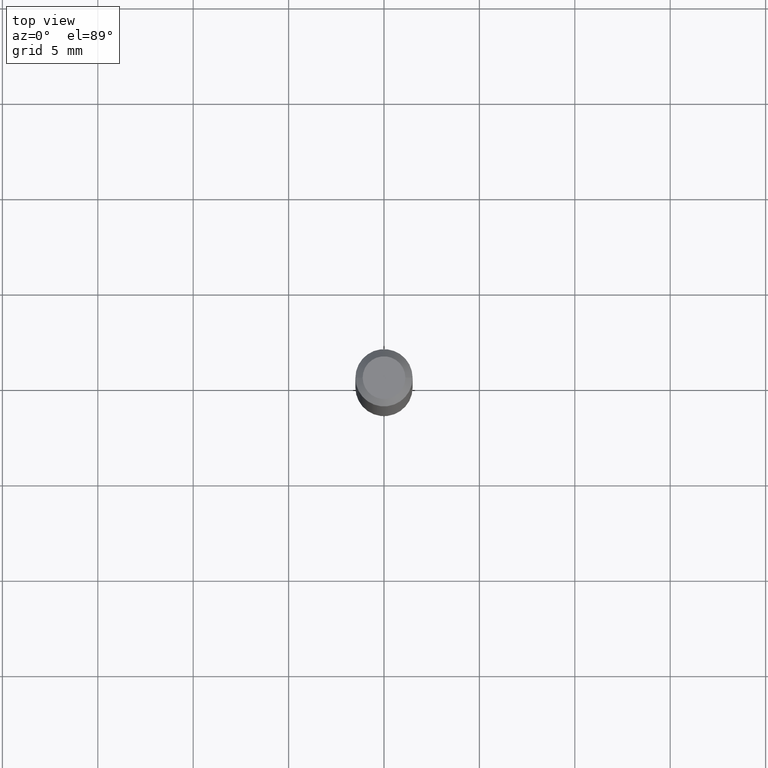
[diagram: clean part render]
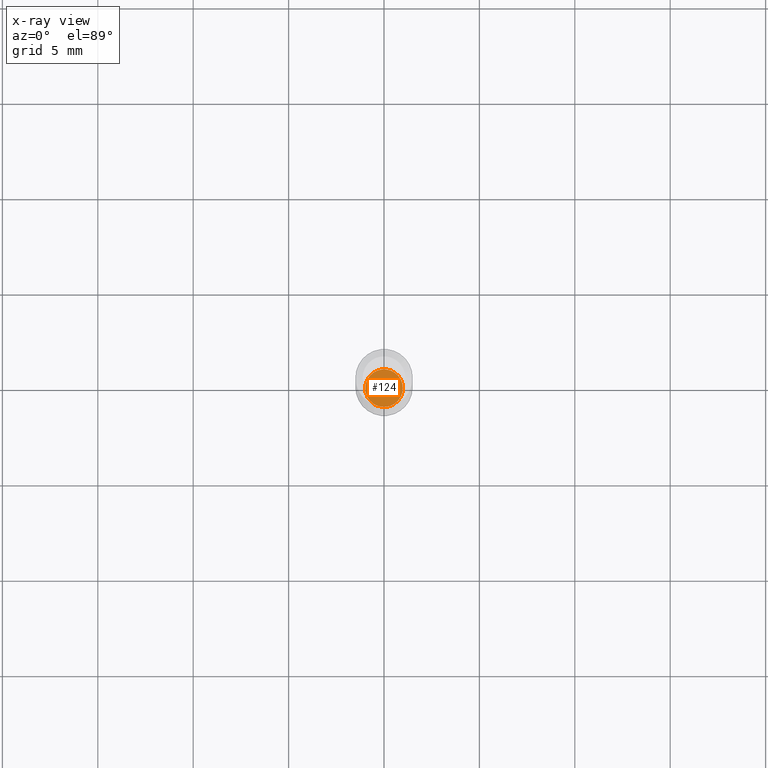
[diagram: x-ray — body ghosted, one internal face saturated and labeled with its STEP entity id]
A machine part, top view, then the same camera in x-ray: the body is ghosted and one INTERNAL B-rep face — a face not visible from any outside direction — is saturated and labeled: STEP entity #124.
In plain terms, the highlighted planar face has unit normal (-0, 0, 1).
Its self-contained STEP definition (entity closure, byte-faithful):
#10 = AXIS2_PLACEMENT_3D ( 'NONE', #242, #410, #137 ) ;
#17 = ORIENTED_EDGE ( 'NONE', *, *, #434, .F. ) ;
#39 = AXIS2_PLACEMENT_3D ( 'NONE', #115, #405, #402 ) ;
#50 = PLANE ( 'NONE',  #10 ) ;
#59 = VERTEX_POINT ( 'NONE', #363 ) ;
#115 = CARTESIAN_POINT ( 'NONE',  ( 3.061726945343791391E-29, -4.371334636231619274E-15, -1.252000000000000224 ) ) ;
#124 = ADVANCED_FACE ( 'NONE', ( #209 ), #50, .F. ) ;
#137 = DIRECTION ( 'NONE',  ( 1.000000000000000000, -6.982962677686265922E-15, 4.876176775795935793E-29 ) ) ;
#164 = CIRCLE ( 'NONE', #461, 0.03885000000000000259 ) ;
#189 = DIRECTION ( 'NONE',  ( 1.000000000000000000, -6.982962677686256455E-15, 0.000000000000000000 ) ) ;
#209 = FACE_OUTER_BOUND ( 'NONE', #414, .T. ) ;
#218 = ORIENTED_EDGE ( 'NONE', *, *, #240, .F. ) ;
#230 = CARTESIAN_POINT ( 'NONE',  ( -0.03885000000000000259, -4.092639556214709577E-15, -1.252000000000000224 ) ) ;
#232 = CIRCLE ( 'NONE', #39, 0.03885000000000000259 ) ;
#240 = EDGE_CURVE ( 'NONE', #59, #423, #164, .T. ) ;
#242 = CARTESIAN_POINT ( 'NONE',  ( 3.061726945343791391E-29, -4.371334636231619274E-15, -1.252000000000000224 ) ) ;
#293 = DIRECTION ( 'NONE',  ( -2.445468806185136597E-29, 3.491481338843145583E-15, 1.000000000000000000 ) ) ;
#363 = CARTESIAN_POINT ( 'NONE',  ( 0.03885000000000000259, -4.642622736259730395E-15, -1.252000000000000224 ) ) ;
#402 = DIRECTION ( 'NONE',  ( 1.000000000000000000, -6.982962677686256455E-15, 0.000000000000000000 ) ) ;
#405 = DIRECTION ( 'NONE',  ( -2.445468806185136597E-29, 3.491481338843145583E-15, 1.000000000000000000 ) ) ;
#410 = DIRECTION ( 'NONE',  ( -2.438088387897960049E-29, 3.491481338843145188E-15, 1.000000000000000000 ) ) ;
#414 = EDGE_LOOP ( 'NONE', ( #218, #17 ) ) ;
#421 = CARTESIAN_POINT ( 'NONE',  ( 3.061726945343791391E-29, -4.371334636231619274E-15, -1.252000000000000224 ) ) ;
#423 = VERTEX_POINT ( 'NONE', #230 ) ;
#434 = EDGE_CURVE ( 'NONE', #423, #59, #232, .T. ) ;
#461 = AXIS2_PLACEMENT_3D ( 'NONE', #421, #293, #189 ) ;